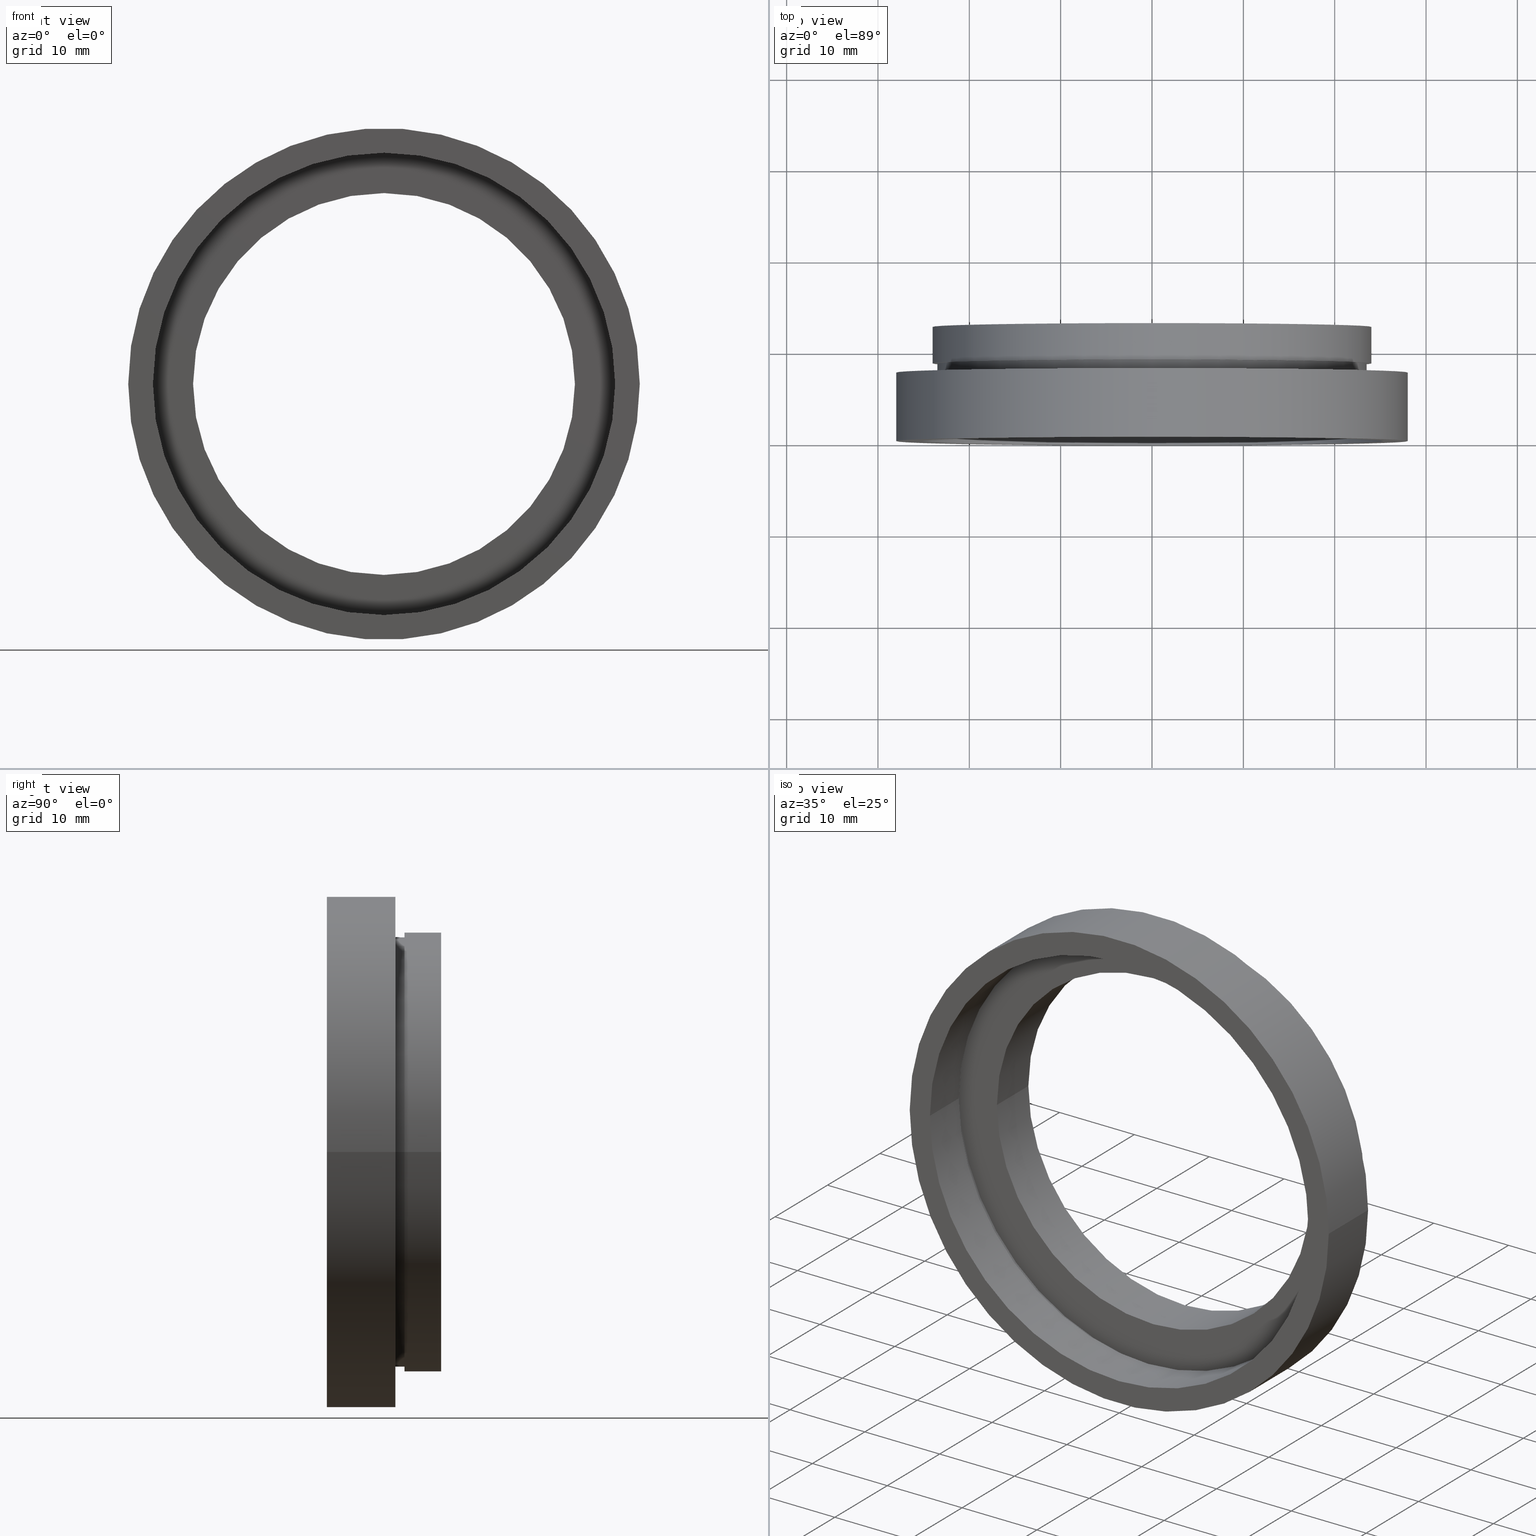
[diagram: canonical four-view strip — front | top / right | iso, engineering-drawing reading convention]
A machine part, canonical four-view strip (front | top / right | iso — engineering-drawing reading convention). The complete STEP part file that produces these views, byte-faithful:
ISO-10303-21;
HEADER;
FILE_DESCRIPTION (( 'STEP AP214' ),
    '1' );
FILE_NAME ('504097.STEP',
    '2019-10-08T02:33:07',
    ( '' ),
    ( '' ),
    'SwSTEP 2.0',
    'SolidWorks 2016',
    '' );
FILE_SCHEMA (( 'AUTOMOTIVE_DESIGN' ));
ENDSEC;

DATA;
#1 = DIRECTION ( 'NONE',  ( -1.000000000000000000, -1.245016848787182300E-016, 0.0000000000000000000 ) ) ;
#2 = DIRECTION ( 'NONE',  ( -1.224646799147351000E-016, 1.000000000000000000, -0.0000000000000000000 ) ) ;
#3 = PRESENTATION_LAYER_ASSIGNMENT (  '', '', ( #92 ) ) ;
#4 = ORIENTED_EDGE ( 'NONE', *, *, #604, .F. ) ;
#5 = LINE ( 'NONE', #88, #386 ) ;
#6 = CIRCLE ( 'NONE', #237, 28.00000000000000000 ) ;
#7 = DIRECTION ( 'NONE',  ( -1.224646799147351000E-016, 1.000000000000000000, -0.0000000000000000000 ) ) ;
#8 = CARTESIAN_POINT ( 'NONE',  ( -25.30000000000000400, 5.499999999999991100, 0.0000000000000000000 ) ) ;
#9 = CARTESIAN_POINT ( 'NONE',  ( 25.30000000000000400, 5.499999999999998200, 3.098356401842804300E-015 ) ) ;
#10 = ORIENTED_EDGE ( 'NONE', *, *, #119, .F. ) ;
#11 =( NAMED_UNIT ( * ) PLANE_ANGLE_UNIT ( ) SI_UNIT ( $, .RADIAN. ) );
#12 =( GEOMETRIC_REPRESENTATION_CONTEXT ( 3 ) GLOBAL_UNCERTAINTY_ASSIGNED_CONTEXT ( ( #320 ) ) GLOBAL_UNIT_ASSIGNED_CONTEXT ( ( #33, #133, #274 ) ) REPRESENTATION_CONTEXT ( 'NONE', 'WORKASPACE' ) );
#13 = PRESENTATION_STYLE_ASSIGNMENT (( #550 ) ) ;
#14 = CIRCLE ( 'NONE', #44, 25.94999999999999900 ) ;
#15 = DIRECTION ( 'NONE',  ( -1.224646799147351000E-016, 1.000000000000000000, -0.0000000000000000000 ) ) ;
#16 = EDGE_CURVE ( 'NONE', #84, #619, #5, .T. ) ;
#17 = FILL_AREA_STYLE ('',( #220 ) ) ;
#18 = MANIFOLD_SOLID_BREP ( '��ת1', #467 ) ;
#19 = EDGE_LOOP ( 'NONE', ( #529, #419, #123, #593 ) ) ;
#20 = CARTESIAN_POINT ( 'NONE',  ( -24.01000000000000200, 12.49999999999999300, 0.0000000000000000000 ) ) ;
#21 = AXIS2_PLACEMENT_3D ( 'NONE', #200, #533, #246 ) ;
#22 = LINE ( 'NONE', #421, #610 ) ;
#23 = APPLICATION_CONTEXT ( 'automotive_design' ) ;
#24 = DIRECTION ( 'NONE',  ( -1.000000000000000000, -1.371322905910519200E-016, 0.0000000000000000000 ) ) ;
#25 = EDGE_CURVE ( 'NONE', #135, #449, #537, .T. ) ;
#26 = CARTESIAN_POINT ( 'NONE',  ( 23.50000000000000000, 8.500000000000000000, 2.877919977996280300E-015 ) ) ;
#27 = DIRECTION ( 'NONE',  ( -1.224646799147351000E-016, 1.000000000000000000, -0.0000000000000000000 ) ) ;
#28 = ORIENTED_EDGE ( 'NONE', *, *, #148, .F. ) ;
#29 = EDGE_CURVE ( 'NONE', #169, #343, #591, .T. ) ;
#30 = DIRECTION ( 'NONE',  ( 1.000000000000000000, 1.224646799147351000E-016, 0.0000000000000000000 ) ) ;
#31 = DIRECTION ( 'NONE',  ( -1.000000000000000000, -1.660022465049576300E-016, 0.0000000000000000000 ) ) ;
#32 = STYLED_ITEM ( 'NONE', ( #568 ), #336 ) ;
#33 =( LENGTH_UNIT ( ) NAMED_UNIT ( * ) SI_UNIT ( .MILLI., .METRE. ) );
#34 = EDGE_LOOP ( 'NONE', ( #113, #28, #77, #49 ) ) ;
#35 = ORIENTED_EDGE ( 'NONE', *, *, #377, .F. ) ;
#36 = ORIENTED_EDGE ( 'NONE', *, *, #85, .T. ) ;
#37 = MECHANICAL_DESIGN_GEOMETRIC_PRESENTATION_REPRESENTATION (  '', ( #92 ), #484 ) ;
#38 = EDGE_CURVE ( 'NONE', #297, #193, #513, .T. ) ;
#39 = PRODUCT_RELATED_PRODUCT_CATEGORY ( 'part', '', ( #371 ) ) ;
#40 = EDGE_LOOP ( 'NONE', ( #497, #161, #446, #385 ) ) ;
#41 = ORIENTED_EDGE ( 'NONE', *, *, #432, .F. ) ;
#42 = DIRECTION ( 'NONE',  ( -1.224646799147351000E-016, 1.000000000000000000, -0.0000000000000000000 ) ) ;
#43 = FACE_BOUND ( 'NONE', #621, .T. ) ;
#44 = AXIS2_PLACEMENT_3D ( 'NONE', #592, #305, #413 ) ;
#45 = SURFACE_STYLE_USAGE ( .BOTH. , #525 ) ;
#46 = ADVANCED_FACE ( 'NONE', ( #620, #425 ), #616, .F. ) ;
#47 =( NAMED_UNIT ( * ) SI_UNIT ( $, .STERADIAN. ) SOLID_ANGLE_UNIT ( ) );
#48 = EDGE_CURVE ( 'NONE', #565, #531, #244, .T. ) ;
#49 = ORIENTED_EDGE ( 'NONE', *, *, #597, .T. ) ;
#50 = VECTOR ( 'NONE', #349, 1000.000000000000000 ) ;
#51 = VERTEX_POINT ( 'NONE', #406 ) ;
#52 = VECTOR ( 'NONE', #415, 1000.000000000000000 ) ;
#53 = DIRECTION ( 'NONE',  ( -1.000000000000000000, -1.245016848787182300E-016, 0.0000000000000000000 ) ) ;
#54 = AXIS2_PLACEMENT_3D ( 'NONE', #140, #231, #241 ) ;
#55 = DIRECTION ( 'NONE',  ( -1.224646799147351000E-016, 1.000000000000000000, -0.0000000000000000000 ) ) ;
#56 =( NAMED_UNIT ( * ) SI_UNIT ( $, .STERADIAN. ) SOLID_ANGLE_UNIT ( ) );
#57 = FILL_AREA_STYLE ('',( #258 ) ) ;
#58 = EDGE_CURVE ( 'NONE', #201, #398, #234, .T. ) ;
#59 = ORIENTED_EDGE ( 'NONE', *, *, #100, .F. ) ;
#60 = VECTOR ( 'NONE', #498, 1000.000000000000000 ) ;
#61 = DIRECTION ( 'NONE',  ( -1.000000000000000000, -1.445000812975266200E-016, 0.0000000000000000000 ) ) ;
#62 = CIRCLE ( 'NONE', #383, 24.01000000000000200 ) ;
#63 = DIRECTION ( 'NONE',  ( -1.000000000000000000, -1.371322905910519200E-016, 0.0000000000000000000 ) ) ;
#64 = AXIS2_PLACEMENT_3D ( 'NONE', #571, #486, #291 ) ;
#65 = DIRECTION ( 'NONE',  ( -1.000000000000000000, -1.476360405086644300E-016, 0.0000000000000000000 ) ) ;
#66 = CARTESIAN_POINT ( 'NONE',  ( 1.394385078907593400E-015, 5.499999999999994700, 0.0000000000000000000 ) ) ;
#67 = EDGE_LOOP ( 'NONE', ( #315, #128 ) ) ;
#68 = CYLINDRICAL_SURFACE ( 'NONE', #330, 27.99999999999999600 ) ;
#69 = AXIS2_PLACEMENT_3D ( 'NONE', #562, #195, #559 ) ;
#70 = ORIENTED_EDGE ( 'NONE', *, *, #178, .T. ) ;
#71 = VECTOR ( 'NONE', #177, 1000.000000000000000 ) ;
#72 = CARTESIAN_POINT ( 'NONE',  ( -25.29999999999999700, -6.567803353796412200E-015, 0.0000000000000000000 ) ) ;
#73 = AXIS2_PLACEMENT_3D ( 'NONE', #458, #314, #165 ) ;
#74 = CARTESIAN_POINT ( 'NONE',  ( -20.89999999999999900, 16.88601823708207300, 0.0000000000000000000 ) ) ;
#75 = DIRECTION ( 'NONE',  ( -1.000000000000000000, -1.336973777246094200E-016, 0.0000000000000000000 ) ) ;
#76 = FILL_AREA_STYLE ('',( #265 ) ) ;
#77 = ORIENTED_EDGE ( 'NONE', *, *, #438, .T. ) ;
#78 = EDGE_LOOP ( 'NONE', ( #190, #518, #479, #324 ) ) ;
#79 = PRESENTATION_STYLE_ASSIGNMENT (( #606 ) ) ;
#80 = DIRECTION ( 'NONE',  ( -1.000000000000000000, -1.445000812975266200E-016, 0.0000000000000000000 ) ) ;
#81 = DIRECTION ( 'NONE',  ( 1.224646799147351000E-016, -1.000000000000000000, 0.0000000000000000000 ) ) ;
#82 = FILL_AREA_STYLE_COLOUR ( '', #216 ) ;
#83 = ORIENTED_EDGE ( 'NONE', *, *, #85, .F. ) ;
#84 = VERTEX_POINT ( 'NONE', #159 ) ;
#85 = EDGE_CURVE ( 'NONE', #169, #351, #114, .T. ) ;
#86 = AXIS2_PLACEMENT_3D ( 'NONE', #603, #608, #31 ) ;
#87 = ORIENTED_EDGE ( 'NONE', *, *, #148, .T. ) ;
#88 = CARTESIAN_POINT ( 'NONE',  ( 27.99999999999999600, 16.88601823708208000, 3.429011037612588900E-015 ) ) ;
#89 = FACE_BOUND ( 'NONE', #445, .T. ) ;
#90 = DIRECTION ( 'NONE',  ( -1.224646799147351000E-016, 1.000000000000000000, -0.0000000000000000000 ) ) ;
#91 =( NAMED_UNIT ( * ) SI_UNIT ( $, .STERADIAN. ) SOLID_ANGLE_UNIT ( ) );
#92 = STYLED_ITEM ( 'NONE', ( #267 ), #144 ) ;
#93 = DIRECTION ( 'NONE',  ( -1.224646799147351000E-016, 1.000000000000000000, -0.0000000000000000000 ) ) ;
#94 = EDGE_LOOP ( 'NONE', ( #590, #397 ) ) ;
#95 = CYLINDRICAL_SURFACE ( 'NONE', #346, 20.89999999999999900 ) ;
#96 = ORIENTED_EDGE ( 'NONE', *, *, #326, .T. ) ;
#97 = FACE_OUTER_BOUND ( 'NONE', #67, .T. ) ;
#98 = PRESENTATION_LAYER_ASSIGNMENT (  '', '', ( #594 ) ) ;
#99 = PLANE ( 'NONE',  #396 ) ;
#100 = EDGE_CURVE ( 'NONE', #343, #199, #189, .T. ) ;
#101 = DIRECTION ( 'NONE',  ( -1.224646799147351000E-016, 1.000000000000000000, -0.0000000000000000000 ) ) ;
#102 = CARTESIAN_POINT ( 'NONE',  ( 23.50000000000000000, 16.88601823708208000, 2.877919977996280300E-015 ) ) ;
#103 = PRESENTATION_LAYER_ASSIGNMENT (  '', '', ( #428 ) ) ;
#104 = ORIENTED_EDGE ( 'NONE', *, *, #29, .T. ) ;
#105 = DIRECTION ( 'NONE',  ( 1.000000000000000000, 1.224646799147351000E-016, 0.0000000000000000000 ) ) ;
#106 = ORIENTED_EDGE ( 'NONE', *, *, #326, .F. ) ;
#107 = CARTESIAN_POINT ( 'NONE',  ( 1.394385078907593400E-015, 5.499999999999994700, 0.0000000000000000000 ) ) ;
#108 = CARTESIAN_POINT ( 'NONE',  ( 0.0000000000000000000, 0.0000000000000000000, 0.0000000000000000000 ) ) ;
#109 = CARTESIAN_POINT ( 'NONE',  ( -25.30000000000000400, 16.88601823708207300, 0.0000000000000000000 ) ) ;
#110 = DIRECTION ( 'NONE',  ( -1.000000000000000000, -1.336973777246094200E-016, 0.0000000000000000000 ) ) ;
#111 = DIRECTION ( 'NONE',  ( -1.224646799147351000E-016, 1.000000000000000000, -0.0000000000000000000 ) ) ;
#112 = AXIS2_PLACEMENT_3D ( 'NONE', #312, #500, #309 ) ;
#113 = ORIENTED_EDGE ( 'NONE', *, *, #303, .F. ) ;
#114 = LINE ( 'NONE', #102, #60 ) ;
#115 = DIRECTION ( 'NONE',  ( -1.224646799147351000E-016, 1.000000000000000000, -0.0000000000000000000 ) ) ;
#116 = EDGE_CURVE ( 'NONE', #297, #523, #152, .T. ) ;
#117 = UNCERTAINTY_MEASURE_WITH_UNIT (LENGTH_MEASURE( 1.000000000000000100E-005 ), #551, 'distance_accuracy_value', 'NONE');
#118 = DIRECTION ( 'NONE',  ( -1.224646799147351000E-016, 1.000000000000000000, -0.0000000000000000000 ) ) ;
#119 = EDGE_CURVE ( 'NONE', #351, #199, #558, .T. ) ;
#120 = CARTESIAN_POINT ( 'NONE',  ( 0.0000000000000000000, 16.88601823708207700, 0.0000000000000000000 ) ) ;
#121 = FACE_OUTER_BOUND ( 'NONE', #476, .T. ) ;
#122 = AXIS2_PLACEMENT_3D ( 'NONE', #66, #599, #24 ) ;
#123 = ORIENTED_EDGE ( 'NONE', *, *, #126, .T. ) ;
#124 = FACE_BOUND ( 'NONE', #536, .T. ) ;
#125 = CARTESIAN_POINT ( 'NONE',  ( 1.149455719078123100E-015, 7.499999999999996400, 0.0000000000000000000 ) ) ;
#126 = EDGE_CURVE ( 'NONE', #201, #153, #333, .T. ) ;
#127 = CARTESIAN_POINT ( 'NONE',  ( 1.026991039163387900E-015, 8.499999999999996400, 0.0000000000000000000 ) ) ;
#128 = ORIENTED_EDGE ( 'NONE', *, *, #581, .F. ) ;
#129 = SURFACE_STYLE_FILL_AREA ( #472 ) ;
#130 = ORIENTED_EDGE ( 'NONE', *, *, #215, .F. ) ;
#131 = SURFACE_STYLE_USAGE ( .BOTH. , #184 ) ;
#132 = SURFACE_STYLE_FILL_AREA ( #17 ) ;
#133 =( NAMED_UNIT ( * ) PLANE_ANGLE_UNIT ( ) SI_UNIT ( $, .RADIAN. ) );
#134 = AXIS2_PLACEMENT_3D ( 'NONE', #337, #42, #1 ) ;
#135 = VERTEX_POINT ( 'NONE', #494 ) ;
#136 = FACE_OUTER_BOUND ( 'NONE', #188, .T. ) ;
#137 = ORIENTED_EDGE ( 'NONE', *, *, #457, .T. ) ;
#138 = SHAPE_DEFINITION_REPRESENTATION ( #364, #284 ) ;
#139 = FACE_OUTER_BOUND ( 'NONE', #362, .T. ) ;
#140 = CARTESIAN_POINT ( 'NONE',  ( 1.149455719078123100E-015, 7.499999999999996400, 0.0000000000000000000 ) ) ;
#141 = ORIENTED_EDGE ( 'NONE', *, *, #119, .T. ) ;
#142 = DIRECTION ( 'NONE',  ( -1.000000000000000000, -1.476360405086644300E-016, 0.0000000000000000000 ) ) ;
#143 = CARTESIAN_POINT ( 'NONE',  ( 5.371323195044473300E-016, 12.49999999999999600, 0.0000000000000000000 ) ) ;
#144 = ADVANCED_FACE ( 'NONE', ( #121 ), #95, .F. ) ;
#145 = CIRCLE ( 'NONE', #156, 24.01000000000000200 ) ;
#146 = STYLED_ITEM ( 'NONE', ( #335 ), #624 ) ;
#147 = DIRECTION ( 'NONE',  ( -1.000000000000000000, -1.445000812975266200E-016, 0.0000000000000000000 ) ) ;
#148 = EDGE_CURVE ( 'NONE', #51, #372, #288, .T. ) ;
#149 = DIRECTION ( 'NONE',  ( -1.000000000000000000, -1.224646799147351000E-016, 0.0000000000000000000 ) ) ;
#150 = ADVANCED_FACE ( 'NONE', ( #162 ), #474, .F. ) ;
#151 = ORIENTED_EDGE ( 'NONE', *, *, #173, .T. ) ;
#152 = CIRCLE ( 'NONE', #416, 24.01000000000000200 ) ;
#153 = VERTEX_POINT ( 'NONE', #8 ) ;
#154 = SURFACE_STYLE_USAGE ( .BOTH. , #586 ) ;
#155 = CYLINDRICAL_SURFACE ( 'NONE', #510, 25.30000000000000400 ) ;
#156 = AXIS2_PLACEMENT_3D ( 'NONE', #157, #538, #453 ) ;
#157 = CARTESIAN_POINT ( 'NONE',  ( 5.371323195044475300E-016, 12.49999999999999600, 0.0000000000000000000 ) ) ;
#158 = CARTESIAN_POINT ( 'NONE',  ( 2.067940818438636500E-015, -3.469446951953614200E-015, 0.0000000000000000000 ) ) ;
#159 = CARTESIAN_POINT ( 'NONE',  ( 28.00000000000000400, -4.043591434103126100E-017, 3.429011037612589700E-015 ) ) ;
#160 = CARTESIAN_POINT ( 'NONE',  ( 24.01000000000000200, 12.50000000000000000, 2.940376964752795100E-015 ) ) ;
#161 = ORIENTED_EDGE ( 'NONE', *, *, #303, .T. ) ;
#162 = FACE_OUTER_BOUND ( 'NONE', #40, .T. ) ;
#163 = FACE_OUTER_BOUND ( 'NONE', #78, .T. ) ;
#164 = DIRECTION ( 'NONE',  ( -1.224646799147351000E-016, 1.000000000000000000, -0.0000000000000000000 ) ) ;
#165 = DIRECTION ( 'NONE',  ( -1.000000000000000000, -1.239088197126290800E-016, 0.0000000000000000000 ) ) ;
#166 = APPLICATION_PROTOCOL_DEFINITION ( 'draft international standard', 'automotive_design', 1998, #322 ) ;
#167 = UNCERTAINTY_MEASURE_WITH_UNIT (LENGTH_MEASURE( 1.000000000000000100E-005 ), #174, 'distance_accuracy_value', 'NONE');
#168 = DIRECTION ( 'NONE',  ( -1.000000000000000000, -1.239088197126290800E-016, 0.0000000000000000000 ) ) ;
#169 = VERTEX_POINT ( 'NONE', #454 ) ;
#170 = EDGE_LOOP ( 'NONE', ( #341, #137 ) ) ;
#171 = CARTESIAN_POINT ( 'NONE',  ( 5.371323195044473300E-016, 12.49999999999999600, 0.0000000000000000000 ) ) ;
#172 = FACE_OUTER_BOUND ( 'NONE', #424, .T. ) ;
#173 = EDGE_CURVE ( 'NONE', #473, #84, #282, .T. ) ;
#174 =( LENGTH_UNIT ( ) NAMED_UNIT ( * ) SI_UNIT ( .MILLI., .METRE. ) );
#175 = PRESENTATION_LAYER_ASSIGNMENT (  '', '', ( #368 ) ) ;
#176 = CARTESIAN_POINT ( 'NONE',  ( 20.89999999999999900, 16.88601823708208000, 2.559511810217968300E-015 ) ) ;
#177 = DIRECTION ( 'NONE',  ( -1.224646799147351000E-016, 1.000000000000000000, -0.0000000000000000000 ) ) ;
#178 = EDGE_CURVE ( 'NONE', #619, #607, #530, .T. ) ;
#179 = SURFACE_STYLE_USAGE ( .BOTH. , #437 ) ;
#180 = PRODUCT_DEFINITION ( 'δ֪', '', #420, #524 ) ;
#181 = SURFACE_STYLE_FILL_AREA ( #248 ) ;
#182 =( NAMED_UNIT ( * ) SI_UNIT ( $, .STERADIAN. ) SOLID_ANGLE_UNIT ( ) );
#183 = COLOUR_RGB ( '',1.000000000000000000, 1.000000000000000000, 1.000000000000000000 ) ;
#184 = SURFACE_SIDE_STYLE ('',( #129 ) ) ;
#185 = STYLED_ITEM ( 'NONE', ( #13 ), #284 ) ;
#186 = CARTESIAN_POINT ( 'NONE',  ( 20.89999999999999900, 12.50000000000000000, 0.0000000000000000000 ) ) ;
#187 = MECHANICAL_DESIGN_GEOMETRIC_PRESENTATION_REPRESENTATION (  '', ( #368 ), #618 ) ;
#188 = EDGE_LOOP ( 'NONE', ( #243, #477, #266, #275 ) ) ;
#189 = LINE ( 'NONE', #205, #50 ) ;
#190 = ORIENTED_EDGE ( 'NONE', *, *, #465, .F. ) ;
#191 = SURFACE_STYLE_FILL_AREA ( #76 ) ;
#192 = ADVANCED_FACE ( 'NONE', ( #136 ), #68, .T. ) ;
#193 = VERTEX_POINT ( 'NONE', #20 ) ;
#194 = AXIS2_PLACEMENT_3D ( 'NONE', #543, #405, #63 ) ;
#195 = DIRECTION ( 'NONE',  ( -1.224646799147351000E-016, 1.000000000000000000, -0.0000000000000000000 ) ) ;
#196 = CIRCLE ( 'NONE', #54, 23.50000000000000000 ) ;
#197 = ADVANCED_FACE ( 'NONE', ( #566 ), #355, .F. ) ;
#198 = FILL_AREA_STYLE_COLOUR ( '', #439 ) ;
#199 = VERTEX_POINT ( 'NONE', #422 ) ;
#200 = CARTESIAN_POINT ( 'NONE',  ( 2.067940818438636500E-015, -3.469446951953614200E-015, 0.0000000000000000000 ) ) ;
#201 = VERTEX_POINT ( 'NONE', #72 ) ;
#202 = CARTESIAN_POINT ( 'NONE',  ( -20.89999999999999900, 6.499999999999994700, 0.0000000000000000000 ) ) ;
#203 = AXIS2_PLACEMENT_3D ( 'NONE', #107, #490, #110 ) ;
#204 = FILL_AREA_STYLE ('',( #448 ) ) ;
#205 = CARTESIAN_POINT ( 'NONE',  ( -23.50000000000000000, 16.88601823708207300, 0.0000000000000000000 ) ) ;
#206 = CARTESIAN_POINT ( 'NONE',  ( 0.0000000000000000000, 16.88601823708207700, 0.0000000000000000000 ) ) ;
#207 = CYLINDRICAL_SURFACE ( 'NONE', #69, 23.50000000000000000 ) ;
#208 = LINE ( 'NONE', #507, #71 ) ;
#209 = CARTESIAN_POINT ( 'NONE',  ( 0.0000000000000000000, 16.88601823708207700, 0.0000000000000000000 ) ) ;
#210 = CARTESIAN_POINT ( 'NONE',  ( 23.50000000000000000, 7.500000000000000000, 0.0000000000000000000 ) ) ;
#211 = CARTESIAN_POINT ( 'NONE',  ( 1.026991039163387900E-015, 8.499999999999996400, 0.0000000000000000000 ) ) ;
#212 = PRESENTATION_LAYER_ASSIGNMENT (  '', '', ( #245 ) ) ;
#213 = ORIENTED_EDGE ( 'NONE', *, *, #316, .T. ) ;
#214 = CARTESIAN_POINT ( 'NONE',  ( 25.94999999999999900, 6.499999999999999100, 3.177958443787381900E-015 ) ) ;
#215 = EDGE_CURVE ( 'NONE', #607, #619, #6, .T. ) ;
#216 = COLOUR_RGB ( '',1.000000000000000000, 1.000000000000000000, 1.000000000000000000 ) ;
#217 = AXIS2_PLACEMENT_3D ( 'NONE', #143, #2, #382 ) ;
#218 = DIRECTION ( 'NONE',  ( -1.224646799147351000E-016, 1.000000000000000000, -0.0000000000000000000 ) ) ;
#219 =( NAMED_UNIT ( * ) SI_UNIT ( $, .STERADIAN. ) SOLID_ANGLE_UNIT ( ) );
#220 = FILL_AREA_STYLE_COLOUR ( '', #319 ) ;
#221 = DIRECTION ( 'NONE',  ( -1.224646799147351000E-016, 1.000000000000000000, -0.0000000000000000000 ) ) ;
#222 = PRESENTATION_LAYER_ASSIGNMENT (  '', '', ( #32 ) ) ;
#223 = ORIENTED_EDGE ( 'NONE', *, *, #29, .F. ) ;
#224 = SURFACE_SIDE_STYLE ('',( #191 ) ) ;
#225 = VERTEX_POINT ( 'NONE', #214 ) ;
#226 = ORIENTED_EDGE ( 'NONE', *, *, #58, .T. ) ;
#227 = CYLINDRICAL_SURFACE ( 'NONE', #194, 25.30000000000000400 ) ;
#228 = FACE_OUTER_BOUND ( 'NONE', #19, .T. ) ;
#229 =( NAMED_UNIT ( * ) PLANE_ANGLE_UNIT ( ) SI_UNIT ( $, .RADIAN. ) );
#230 = AXIS2_PLACEMENT_3D ( 'NONE', #232, #561, #276 ) ;
#231 = DIRECTION ( 'NONE',  ( -1.224646799147351000E-016, 1.000000000000000000, -0.0000000000000000000 ) ) ;
#232 = CARTESIAN_POINT ( 'NONE',  ( 1.026991039163387900E-015, 8.499999999999996400, 0.0000000000000000000 ) ) ;
#233 = EDGE_CURVE ( 'NONE', #531, #449, #390, .T. ) ;
#234 = CIRCLE ( 'NONE', #433, 25.30000000000000100 ) ;
#235 = ORIENTED_EDGE ( 'NONE', *, *, #377, .T. ) ;
#236 = FACE_OUTER_BOUND ( 'NONE', #170, .T. ) ;
#237 = AXIS2_PLACEMENT_3D ( 'NONE', #125, #118, #418 ) ;
#238 = ORIENTED_EDGE ( 'NONE', *, *, #116, .T. ) ;
#239 = ORIENTED_EDGE ( 'NONE', *, *, #173, .F. ) ;
#240 = COLOUR_RGB ( '',1.000000000000000000, 1.000000000000000000, 1.000000000000000000 ) ;
#241 = DIRECTION ( 'NONE',  ( -1.000000000000000000, -1.107270303814983300E-016, 0.0000000000000000000 ) ) ;
#242 = CARTESIAN_POINT ( 'NONE',  ( 25.30000000000000400, 5.499999999999999100, 0.0000000000000000000 ) ) ;
#243 = ORIENTED_EDGE ( 'NONE', *, *, #16, .F. ) ;
#244 = CIRCLE ( 'NONE', #403, 20.89999999999999900 ) ;
#245 = STYLED_ITEM ( 'NONE', ( #614 ), #480 ) ;
#246 = DIRECTION ( 'NONE',  ( -1.000000000000000000, -1.224646799147351200E-016, 0.0000000000000000000 ) ) ;
#247 = CIRCLE ( 'NONE', #134, 20.89999999999999900 ) ;
#248 = FILL_AREA_STYLE ('',( #198 ) ) ;
#249 = AXIS2_PLACEMENT_3D ( 'NONE', #242, #338, #573 ) ;
#250 = CARTESIAN_POINT ( 'NONE',  ( 20.89999999999999900, 6.499999999999999100, 0.0000000000000000000 ) ) ;
#251 = ADVANCED_FACE ( 'NONE', ( #278 ), #255, .T. ) ;
#252 = MECHANICAL_DESIGN_GEOMETRIC_PRESENTATION_REPRESENTATION (  '', ( #245 ), #298 ) ;
#253 = CIRCLE ( 'NONE', #426, 24.01000000000000200 ) ;
#254 =( LENGTH_UNIT ( ) NAMED_UNIT ( * ) SI_UNIT ( .MILLI., .METRE. ) );
#255 = CYLINDRICAL_SURFACE ( 'NONE', #466, 27.99999999999999600 ) ;
#256 = CARTESIAN_POINT ( 'NONE',  ( -27.99999999999999600, 16.88601823708207300, 0.0000000000000000000 ) ) ;
#257 = DIRECTION ( 'NONE',  ( -1.224646799147351000E-016, 1.000000000000000000, 0.0000000000000000000 ) ) ;
#258 = FILL_AREA_STYLE_COLOUR ( '', #260 ) ;
#259 = ORIENTED_EDGE ( 'NONE', *, *, #345, .F. ) ;
#260 = COLOUR_RGB ( '',1.000000000000000000, 1.000000000000000000, 1.000000000000000000 ) ;
#261 = EDGE_LOOP ( 'NONE', ( #151, #380, #130, #4 ) ) ;
#262 = EDGE_CURVE ( 'NONE', #449, #135, #402, .T. ) ;
#263 = FACE_OUTER_BOUND ( 'NONE', #325, .T. ) ;
#264 = CARTESIAN_POINT ( 'NONE',  ( 2.067940818438636500E-015, -3.469446951953614200E-015, 0.0000000000000000000 ) ) ;
#265 = FILL_AREA_STYLE_COLOUR ( '', #290 ) ;
#266 = ORIENTED_EDGE ( 'NONE', *, *, #604, .T. ) ;
#267 = PRESENTATION_STYLE_ASSIGNMENT (( #154 ) ) ;
#268 = EDGE_LOOP ( 'NONE', ( #576, #96, #556, #583 ) ) ;
#269 = EDGE_LOOP ( 'NONE', ( #83, #104, #557, #10 ) ) ;
#270 = PRODUCT_CONTEXT ( 'NONE', #23, 'mechanical' ) ;
#271 = CIRCLE ( 'NONE', #572, 25.94999999999999900 ) ;
#272 = CARTESIAN_POINT ( 'NONE',  ( 0.0000000000000000000, 16.88601823708207700, 0.0000000000000000000 ) ) ;
#273 = DIRECTION ( 'NONE',  ( -1.000000000000000000, -1.224646799147351200E-016, 0.0000000000000000000 ) ) ;
#274 =( NAMED_UNIT ( * ) SI_UNIT ( $, .STERADIAN. ) SOLID_ANGLE_UNIT ( ) );
#275 = ORIENTED_EDGE ( 'NONE', *, *, #178, .F. ) ;
#276 = DIRECTION ( 'NONE',  ( -1.000000000000000000, -1.476360405086644300E-016, 0.0000000000000000000 ) ) ;
#277 = LINE ( 'NONE', #256, #388 ) ;
#278 = FACE_OUTER_BOUND ( 'NONE', #261, .T. ) ;
#279 = MECHANICAL_DESIGN_GEOMETRIC_PRESENTATION_REPRESENTATION (  '', ( #146 ), #321 ) ;
#280 = CARTESIAN_POINT ( 'NONE',  ( 0.0000000000000000000, 16.88601823708207700, 0.0000000000000000000 ) ) ;
#281 = UNCERTAINTY_MEASURE_WITH_UNIT (LENGTH_MEASURE( 1.000000000000000100E-005 ), #622, 'distance_accuracy_value', 'NONE');
#282 = CIRCLE ( 'NONE', #378, 27.99999999999999600 ) ;
#283 = AXIS2_PLACEMENT_3D ( 'NONE', #585, #257, #582 ) ;
#284 = ADVANCED_BREP_SHAPE_REPRESENTATION ( '504097', ( #18, #471 ), #313 ) ;
#285 = EDGE_CURVE ( 'NONE', #565, #135, #595, .T. ) ;
#286 = AXIS2_PLACEMENT_3D ( 'NONE', #334, #475, #511 ) ;
#287 = EDGE_LOOP ( 'NONE', ( #238, #461, #332, #512 ) ) ;
#288 = CIRCLE ( 'NONE', #203, 25.94999999999999900 ) ;
#289 = SURFACE_SIDE_STYLE ('',( #412 ) ) ;
#290 = COLOUR_RGB ( '',1.000000000000000000, 1.000000000000000000, 1.000000000000000000 ) ;
#291 = DIRECTION ( 'NONE',  ( -1.000000000000000000, -1.107270303814983300E-016, 0.0000000000000000000 ) ) ;
#292 = CIRCLE ( 'NONE', #328, 25.30000000000000400 ) ;
#293 = AXIS2_PLACEMENT_3D ( 'NONE', #206, #164, #404 ) ;
#294 = CARTESIAN_POINT ( 'NONE',  ( -24.01000000000000200, 16.88601823708207300, 0.0000000000000000000 ) ) ;
#295 = ADVANCED_FACE ( 'NONE', ( #139 ), #155, .F. ) ;
#296 = DIRECTION ( 'NONE',  ( -1.224646799147351000E-016, 1.000000000000000000, 0.0000000000000000000 ) ) ;
#297 = VERTEX_POINT ( 'NONE', #508 ) ;
#298 =( GEOMETRIC_REPRESENTATION_CONTEXT ( 3 ) GLOBAL_UNCERTAINTY_ASSIGNED_CONTEXT ( ( #281 ) ) GLOBAL_UNIT_ASSIGNED_CONTEXT ( ( #622, #342, #47 ) ) REPRESENTATION_CONTEXT ( 'NONE', 'WORKASPACE' ) );
#299 = ORIENTED_EDGE ( 'NONE', *, *, #430, .T. ) ;
#300 = ORIENTED_EDGE ( 'NONE', *, *, #569, .T. ) ;
#301 = EDGE_CURVE ( 'NONE', #153, #613, #521, .T. ) ;
#302 = CARTESIAN_POINT ( 'NONE',  ( 2.067940818438636500E-015, -3.469446951953614200E-015, 0.0000000000000000000 ) ) ;
#303 = EDGE_CURVE ( 'NONE', #372, #225, #208, .T. ) ;
#304 =( NAMED_UNIT ( * ) PLANE_ANGLE_UNIT ( ) SI_UNIT ( $, .RADIAN. ) );
#305 = DIRECTION ( 'NONE',  ( -1.224646799147351000E-016, 1.000000000000000000, -0.0000000000000000000 ) ) ;
#306 = ORIENTED_EDGE ( 'NONE', *, *, #215, .T. ) ;
#307 = SURFACE_STYLE_FILL_AREA ( #57 ) ;
#308 = FACE_OUTER_BOUND ( 'NONE', #268, .T. ) ;
#309 = DIRECTION ( 'NONE',  ( -1.000000000000000000, -1.336973777246094200E-016, 0.0000000000000000000 ) ) ;
#310 = FACE_OUTER_BOUND ( 'NONE', #287, .T. ) ;
#311 = UNCERTAINTY_MEASURE_WITH_UNIT (LENGTH_MEASURE( 1.000000000000000100E-005 ), #254, 'distance_accuracy_value', 'NONE');
#312 = CARTESIAN_POINT ( 'NONE',  ( 1.271920398992858200E-015, 6.499999999999995600, 0.0000000000000000000 ) ) ;
#313 =( GEOMETRIC_REPRESENTATION_CONTEXT ( 3 ) GLOBAL_UNCERTAINTY_ASSIGNED_CONTEXT ( ( #615 ) ) GLOBAL_UNIT_ASSIGNED_CONTEXT ( ( #589, #229, #370 ) ) REPRESENTATION_CONTEXT ( 'NONE', 'WORKASPACE' ) );
#314 = DIRECTION ( 'NONE',  ( -1.224646799147351000E-016, 1.000000000000000000, -0.0000000000000000000 ) ) ;
#315 = ORIENTED_EDGE ( 'NONE', *, *, #597, .F. ) ;
#316 = EDGE_CURVE ( 'NONE', #398, #613, #22, .T. ) ;
#317 = PRESENTATION_STYLE_ASSIGNMENT (( #131 ) ) ;
#318 = DIRECTION ( 'NONE',  ( -1.000000000000000000, -1.371322905910519200E-016, 0.0000000000000000000 ) ) ;
#319 = COLOUR_RGB ( '',1.000000000000000000, 1.000000000000000000, 1.000000000000000000 ) ;
#320 = UNCERTAINTY_MEASURE_WITH_UNIT (LENGTH_MEASURE( 1.000000000000000100E-005 ), #33, 'distance_accuracy_value', 'NONE');
#321 =( GEOMETRIC_REPRESENTATION_CONTEXT ( 3 ) GLOBAL_UNCERTAINTY_ASSIGNED_CONTEXT ( ( #311 ) ) GLOBAL_UNIT_ASSIGNED_CONTEXT ( ( #254, #304, #56 ) ) REPRESENTATION_CONTEXT ( 'NONE', 'WORKASPACE' ) );
#322 = APPLICATION_CONTEXT ( 'automotive_design' ) ;
#323 = DIRECTION ( 'NONE',  ( -1.224646799147351000E-016, 1.000000000000000000, -0.0000000000000000000 ) ) ;
#324 = ORIENTED_EDGE ( 'NONE', *, *, #285, .F. ) ;
#325 = EDGE_LOOP ( 'NONE', ( #306, #70 ) ) ;
#326 = EDGE_CURVE ( 'NONE', #523, #297, #62, .T. ) ;
#327 = LINE ( 'NONE', #517, #427 ) ;
#328 = AXIS2_PLACEMENT_3D ( 'NONE', #442, #101, #391 ) ;
#329 = CARTESIAN_POINT ( 'NONE',  ( -23.50000000000000000, 7.499999999999993800, 0.0000000000000000000 ) ) ;
#330 = AXIS2_PLACEMENT_3D ( 'NONE', #209, #542, #546 ) ;
#331 = FILL_AREA_STYLE ('',( #482 ) ) ;
#332 = ORIENTED_EDGE ( 'NONE', *, *, #502, .F. ) ;
#333 = LINE ( 'NONE', #109, #408 ) ;
#334 = CARTESIAN_POINT ( 'NONE',  ( 0.0000000000000000000, 16.88601823708207700, 0.0000000000000000000 ) ) ;
#335 = PRESENTATION_STYLE_ASSIGNMENT (( #456 ) ) ;
#336 = ADVANCED_FACE ( 'NONE', ( #310 ), #376, .T. ) ;
#337 = CARTESIAN_POINT ( 'NONE',  ( 1.271920398992858000E-015, 6.499999999999997300, 0.0000000000000000000 ) ) ;
#338 = DIRECTION ( 'NONE',  ( 1.224646799147351000E-016, -1.000000000000000000, 0.0000000000000000000 ) ) ;
#339 = DIRECTION ( 'NONE',  ( -1.000000000000000000, -1.224646799147351000E-016, 0.0000000000000000000 ) ) ;
#340 = PRESENTATION_LAYER_ASSIGNMENT (  '', '', ( #185 ) ) ;
#341 = ORIENTED_EDGE ( 'NONE', *, *, #502, .T. ) ;
#342 =( NAMED_UNIT ( * ) PLANE_ANGLE_UNIT ( ) SI_UNIT ( $, .RADIAN. ) );
#343 = VERTEX_POINT ( 'NONE', #329 ) ;
#344 = CIRCLE ( 'NONE', #605, 25.30000000000000100 ) ;
#345 = EDGE_CURVE ( 'NONE', #199, #351, #440, .T. ) ;
#346 = AXIS2_PLACEMENT_3D ( 'NONE', #359, #111, #455 ) ;
#347 = ADVANCED_FACE ( 'NONE', ( #43, #236 ), #429, .F. ) ;
#348 = CARTESIAN_POINT ( 'NONE',  ( 20.89999999999999900, 12.49999999999999800, 2.559511810217968300E-015 ) ) ;
#349 = DIRECTION ( 'NONE',  ( -1.224646799147351000E-016, 1.000000000000000000, -0.0000000000000000000 ) ) ;
#350 = ORIENTED_EDGE ( 'NONE', *, *, #233, .F. ) ;
#351 = VERTEX_POINT ( 'NONE', #26 ) ;
#352 = EDGE_LOOP ( 'NONE', ( #239, #41 ) ) ;
#353 = CARTESIAN_POINT ( 'NONE',  ( -28.00000000000000000, 7.499999999999992900, 0.0000000000000000000 ) ) ;
#354 = CARTESIAN_POINT ( 'NONE',  ( 1.271920398992858000E-015, 6.499999999999997300, 0.0000000000000000000 ) ) ;
#355 = CYLINDRICAL_SURFACE ( 'NONE', #361, 25.94999999999999900 ) ;
#356 = CARTESIAN_POINT ( 'NONE',  ( -25.94999999999999900, 6.499999999999992000, 0.0000000000000000000 ) ) ;
#357 = AXIS2_PLACEMENT_3D ( 'NONE', #280, #488, #142 ) ;
#358 = PLANE ( 'NONE',  #489 ) ;
#359 = CARTESIAN_POINT ( 'NONE',  ( 0.0000000000000000000, 16.88601823708207700, 0.0000000000000000000 ) ) ;
#360 = DIRECTION ( 'NONE',  ( -1.000000000000000000, -1.336973777246094200E-016, 0.0000000000000000000 ) ) ;
#361 = AXIS2_PLACEMENT_3D ( 'NONE', #272, #555, #75 ) ;
#362 = EDGE_LOOP ( 'NONE', ( #506, #213, #299, #407 ) ) ;
#363 = VECTOR ( 'NONE', #392, 1000.000000000000000 ) ;
#364 = PRODUCT_DEFINITION_SHAPE ( 'NONE', 'NONE',  #180 ) ;
#365 = AXIS2_PLACEMENT_3D ( 'NONE', #444, #93, #147 ) ;
#366 = SURFACE_SIDE_STYLE ('',( #132 ) ) ;
#367 = EDGE_LOOP ( 'NONE', ( #545, #106 ) ) ;
#368 = STYLED_ITEM ( 'NONE', ( #317 ), #18 ) ;
#369 = CIRCLE ( 'NONE', #112, 25.94999999999999900 ) ;
#370 =( NAMED_UNIT ( * ) SI_UNIT ( $, .STERADIAN. ) SOLID_ANGLE_UNIT ( ) );
#371 = PRODUCT ( '504097', '504097', '', ( #270 ) ) ;
#372 = VERTEX_POINT ( 'NONE', #469 ) ;
#373 = LINE ( 'NONE', #574, #560 ) ;
#374 = MECHANICAL_DESIGN_GEOMETRIC_PRESENTATION_REPRESENTATION (  '', ( #185 ), #414 ) ;
#375 =( LENGTH_UNIT ( ) NAMED_UNIT ( * ) SI_UNIT ( .MILLI., .METRE. ) );
#376 = CYLINDRICAL_SURFACE ( 'NONE', #286, 24.01000000000000200 ) ;
#377 = EDGE_CURVE ( 'NONE', #343, #169, #196, .T. ) ;
#378 = AXIS2_PLACEMENT_3D ( 'NONE', #264, #115, #273 ) ;
#379 = EDGE_LOOP ( 'NONE', ( #87, #547 ) ) ;
#380 = ORIENTED_EDGE ( 'NONE', *, *, #16, .T. ) ;
#381 = ADVANCED_FACE ( 'NONE', ( #172 ), #207, .T. ) ;
#382 = DIRECTION ( 'NONE',  ( -1.000000000000000000, -8.300112325247881300E-017, 0.0000000000000000000 ) ) ;
#383 = AXIS2_PLACEMENT_3D ( 'NONE', #127, #423, #80 ) ;
#384 = CARTESIAN_POINT ( 'NONE',  ( 28.00000000000000000, -9.629649721936179300E-032, 0.0000000000000000000 ) ) ;
#385 = ORIENTED_EDGE ( 'NONE', *, *, #438, .F. ) ;
#386 = VECTOR ( 'NONE', #434, 1000.000000000000000 ) ;
#387 = DIRECTION ( 'NONE',  ( -1.000000000000000000, -1.445000812975266200E-016, 0.0000000000000000000 ) ) ;
#388 = VECTOR ( 'NONE', #587, 1000.000000000000000 ) ;
#389 = AXIS2_PLACEMENT_3D ( 'NONE', #588, #55, #65 ) ;
#390 = LINE ( 'NONE', #176, #578 ) ;
#391 = DIRECTION ( 'NONE',  ( -1.000000000000000000, -1.371322905910519200E-016, 0.0000000000000000000 ) ) ;
#392 = DIRECTION ( 'NONE',  ( -1.224646799147351000E-016, 1.000000000000000000, -0.0000000000000000000 ) ) ;
#393 = UNCERTAINTY_MEASURE_WITH_UNIT (LENGTH_MEASURE( 1.000000000000000100E-005 ), #375, 'distance_accuracy_value', 'NONE');
#394 = PLANE ( 'NONE',  #540 ) ;
#395 = ADVANCED_FACE ( 'NONE', ( #163 ), #452, .F. ) ;
#396 = AXIS2_PLACEMENT_3D ( 'NONE', #384, #485, #149 ) ;
#397 = ORIENTED_EDGE ( 'NONE', *, *, #430, .F. ) ;
#398 = VERTEX_POINT ( 'NONE', #564 ) ;
#399 = FACE_OUTER_BOUND ( 'NONE', #352, .T. ) ;
#400 = EDGE_CURVE ( 'NONE', #523, #567, #327, .T. ) ;
#401 = DIRECTION ( 'NONE',  ( 1.224646799147351000E-016, -1.000000000000000000, 0.0000000000000000000 ) ) ;
#402 = CIRCLE ( 'NONE', #492, 20.89999999999999900 ) ;
#403 = AXIS2_PLACEMENT_3D ( 'NONE', #354, #15, #53 ) ;
#404 = DIRECTION ( 'NONE',  ( -1.000000000000000000, -1.336973777246094200E-016, 0.0000000000000000000 ) ) ;
#405 = DIRECTION ( 'NONE',  ( -1.224646799147351000E-016, 1.000000000000000000, -0.0000000000000000000 ) ) ;
#406 = CARTESIAN_POINT ( 'NONE',  ( -25.94999999999999900, 5.499999999999991100, 0.0000000000000000000 ) ) ;
#407 = ORIENTED_EDGE ( 'NONE', *, *, #126, .F. ) ;
#408 = VECTOR ( 'NONE', #447, 1000.000000000000000 ) ;
#409 = CARTESIAN_POINT ( 'NONE',  ( 28.00000000000000400, 7.500000000000000000, 3.429011037612589700E-015 ) ) ;
#410 =( NAMED_UNIT ( * ) SI_UNIT ( $, .STERADIAN. ) SOLID_ANGLE_UNIT ( ) );
#411 = FACE_BOUND ( 'NONE', #417, .T. ) ;
#412 = SURFACE_STYLE_FILL_AREA ( #331 ) ;
#413 = DIRECTION ( 'NONE',  ( -1.000000000000000000, -1.336973777246094200E-016, 0.0000000000000000000 ) ) ;
#414 =( GEOMETRIC_REPRESENTATION_CONTEXT ( 3 ) GLOBAL_UNCERTAINTY_ASSIGNED_CONTEXT ( ( #167 ) ) GLOBAL_UNIT_ASSIGNED_CONTEXT ( ( #174, #598, #219 ) ) REPRESENTATION_CONTEXT ( 'NONE', 'WORKASPACE' ) );
#415 = DIRECTION ( 'NONE',  ( -1.224646799147351000E-016, 1.000000000000000000, -0.0000000000000000000 ) ) ;
#416 = AXIS2_PLACEMENT_3D ( 'NONE', #211, #451, #61 ) ;
#417 = EDGE_LOOP ( 'NONE', ( #226, #300 ) ) ;
#418 = DIRECTION ( 'NONE',  ( -1.000000000000000000, -1.239088197126290800E-016, 0.0000000000000000000 ) ) ;
#419 = ORIENTED_EDGE ( 'NONE', *, *, #58, .F. ) ;
#420 = PRODUCT_DEFINITION_FORMATION_WITH_SPECIFIED_SOURCE ( '�κ�', '', #371, .NOT_KNOWN. ) ;
#421 = CARTESIAN_POINT ( 'NONE',  ( 25.30000000000000400, 16.88601823708208000, 3.098356401842804300E-015 ) ) ;
#422 = CARTESIAN_POINT ( 'NONE',  ( -23.50000000000000000, 8.499999999999992900, 0.0000000000000000000 ) ) ;
#423 = DIRECTION ( 'NONE',  ( -1.224646799147351000E-016, 1.000000000000000000, -0.0000000000000000000 ) ) ;
#424 = EDGE_LOOP ( 'NONE', ( #235, #36, #259, #59 ) ) ;
#425 = FACE_OUTER_BOUND ( 'NONE', #379, .T. ) ;
#426 = AXIS2_PLACEMENT_3D ( 'NONE', #443, #90, #387 ) ;
#427 = VECTOR ( 'NONE', #27, 1000.000000000000000 ) ;
#428 = STYLED_ITEM ( 'NONE', ( #623 ), #295 ) ;
#429 = PLANE ( 'NONE',  #464 ) ;
#430 = EDGE_CURVE ( 'NONE', #613, #153, #292, .T. ) ;
#431 = UNCERTAINTY_MEASURE_WITH_UNIT (LENGTH_MEASURE( 1.000000000000000100E-005 ), #539, 'distance_accuracy_value', 'NONE');
#432 = EDGE_CURVE ( 'NONE', #84, #473, #514, .T. ) ;
#433 = AXIS2_PLACEMENT_3D ( 'NONE', #302, #535, #584 ) ;
#434 = DIRECTION ( 'NONE',  ( -1.224646799147351000E-016, 1.000000000000000000, -0.0000000000000000000 ) ) ;
#435 = ADVANCED_FACE ( 'NONE', ( #97, #124 ), #394, .F. ) ;
#436 = ORIENTED_EDGE ( 'NONE', *, *, #48, .F. ) ;
#437 = SURFACE_SIDE_STYLE ('',( #516 ) ) ;
#438 = EDGE_CURVE ( 'NONE', #51, #600, #373, .T. ) ;
#439 = COLOUR_RGB ( '',1.000000000000000000, 1.000000000000000000, 1.000000000000000000 ) ;
#440 = CIRCLE ( 'NONE', #230, 23.50000000000000000 ) ;
#441 = ADVANCED_FACE ( 'NONE', ( #468 ), #481, .T. ) ;
#442 = CARTESIAN_POINT ( 'NONE',  ( 1.394385078907593400E-015, 5.499999999999994700, 0.0000000000000000000 ) ) ;
#443 = CARTESIAN_POINT ( 'NONE',  ( 5.371323195044475300E-016, 12.49999999999999600, 0.0000000000000000000 ) ) ;
#444 = CARTESIAN_POINT ( 'NONE',  ( 0.0000000000000000000, 16.88601823708207700, 0.0000000000000000000 ) ) ;
#445 = EDGE_LOOP ( 'NONE', ( #35, #223 ) ) ;
#446 = ORIENTED_EDGE ( 'NONE', *, *, #581, .T. ) ;
#447 = DIRECTION ( 'NONE',  ( -1.224646799147351000E-016, 1.000000000000000000, -0.0000000000000000000 ) ) ;
#448 = FILL_AREA_STYLE_COLOUR ( '', #240 ) ;
#449 = VERTEX_POINT ( 'NONE', #348 ) ;
#450 = CARTESIAN_POINT ( 'NONE',  ( 24.01000000000000200, 8.500000000000000000, 2.940376964752795100E-015 ) ) ;
#451 = DIRECTION ( 'NONE',  ( -1.224646799147351000E-016, 1.000000000000000000, -0.0000000000000000000 ) ) ;
#452 = CYLINDRICAL_SURFACE ( 'NONE', #86, 20.89999999999999900 ) ;
#453 = DIRECTION ( 'NONE',  ( -1.000000000000000000, -1.445000812975266200E-016, 0.0000000000000000000 ) ) ;
#454 = CARTESIAN_POINT ( 'NONE',  ( 23.50000000000000000, 7.499999999999999100, 2.877919977996280300E-015 ) ) ;
#455 = DIRECTION ( 'NONE',  ( -1.000000000000000000, -1.660022465049576300E-016, 0.0000000000000000000 ) ) ;
#456 = SURFACE_STYLE_USAGE ( .BOTH. , #534 ) ;
#457 = EDGE_CURVE ( 'NONE', #567, #193, #253, .T. ) ;
#458 = CARTESIAN_POINT ( 'NONE',  ( 1.149455719078123100E-015, 7.499999999999996400, 0.0000000000000000000 ) ) ;
#459 = ORIENTED_EDGE ( 'NONE', *, *, #48, .T. ) ;
#460 = APPLICATION_PROTOCOL_DEFINITION ( 'draft international standard', 'automotive_design', 1998, #23 ) ;
#461 = ORIENTED_EDGE ( 'NONE', *, *, #400, .T. ) ;
#462 =( NAMED_UNIT ( * ) SI_UNIT ( $, .STERADIAN. ) SOLID_ANGLE_UNIT ( ) );
#463 = FACE_BOUND ( 'NONE', #478, .T. ) ;
#464 = AXIS2_PLACEMENT_3D ( 'NONE', #186, #81, #30 ) ;
#465 = EDGE_CURVE ( 'NONE', #531, #565, #247, .T. ) ;
#466 = AXIS2_PLACEMENT_3D ( 'NONE', #544, #218, #168 ) ;
#467 = CLOSED_SHELL ( 'NONE', ( #251, #381, #336, #395, #150, #295, #487, #624, #46, #197, #435, #144, #347, #480, #579, #441, #617, #192 ) ) ;
#468 = FACE_OUTER_BOUND ( 'NONE', #269, .T. ) ;
#469 = CARTESIAN_POINT ( 'NONE',  ( 25.94999999999999900, 5.499999999999998200, 3.177958443787381900E-015 ) ) ;
#470 = FILL_AREA_STYLE ('',( #82 ) ) ;
#471 = AXIS2_PLACEMENT_3D ( 'NONE', #108, #505, #553 ) ;
#472 = FILL_AREA_STYLE ('',( #509 ) ) ;
#473 = VERTEX_POINT ( 'NONE', #580 ) ;
#474 = CYLINDRICAL_SURFACE ( 'NONE', #293, 25.94999999999999900 ) ;
#475 = DIRECTION ( 'NONE',  ( -1.224646799147351000E-016, 1.000000000000000000, -0.0000000000000000000 ) ) ;
#476 = EDGE_LOOP ( 'NONE', ( #350, #436, #499, #504 ) ) ;
#477 = ORIENTED_EDGE ( 'NONE', *, *, #432, .T. ) ;
#478 = EDGE_LOOP ( 'NONE', ( #612, #141 ) ) ;
#479 = ORIENTED_EDGE ( 'NONE', *, *, #262, .T. ) ;
#480 = ADVANCED_FACE ( 'NONE', ( #308 ), #526, .T. ) ;
#481 = CYLINDRICAL_SURFACE ( 'NONE', #357, 23.50000000000000000 ) ;
#482 = FILL_AREA_STYLE_COLOUR ( '', #183 ) ;
#483 = ORIENTED_EDGE ( 'NONE', *, *, #465, .T. ) ;
#484 =( GEOMETRIC_REPRESENTATION_CONTEXT ( 3 ) GLOBAL_UNCERTAINTY_ASSIGNED_CONTEXT ( ( #431 ) ) GLOBAL_UNIT_ASSIGNED_CONTEXT ( ( #539, #11, #410 ) ) REPRESENTATION_CONTEXT ( 'NONE', 'WORKASPACE' ) );
#485 = DIRECTION ( 'NONE',  ( -1.224646799147351000E-016, 1.000000000000000000, 0.0000000000000000000 ) ) ;
#486 = DIRECTION ( 'NONE',  ( -1.224646799147351000E-016, 1.000000000000000000, -0.0000000000000000000 ) ) ;
#487 = ADVANCED_FACE ( 'NONE', ( #399, #411 ), #99, .F. ) ;
#488 = DIRECTION ( 'NONE',  ( -1.224646799147351000E-016, 1.000000000000000000, -0.0000000000000000000 ) ) ;
#489 = AXIS2_PLACEMENT_3D ( 'NONE', #210, #401, #105 ) ;
#490 = DIRECTION ( 'NONE',  ( -1.224646799147351000E-016, 1.000000000000000000, -0.0000000000000000000 ) ) ;
#491 = FACE_OUTER_BOUND ( 'NONE', #367, .T. ) ;
#492 = AXIS2_PLACEMENT_3D ( 'NONE', #171, #323, #503 ) ;
#493 = DIRECTION ( 'NONE',  ( -1.224646799147351000E-016, 1.000000000000000000, -0.0000000000000000000 ) ) ;
#494 = CARTESIAN_POINT ( 'NONE',  ( -20.89999999999999900, 12.49999999999999500, 0.0000000000000000000 ) ) ;
#495 = DIRECTION ( 'NONE',  ( -1.000000000000000000, -1.224646799147351000E-016, 0.0000000000000000000 ) ) ;
#496 = PLANE ( 'NONE',  #283 ) ;
#497 = ORIENTED_EDGE ( 'NONE', *, *, #552, .F. ) ;
#498 = DIRECTION ( 'NONE',  ( -1.224646799147351000E-016, 1.000000000000000000, -0.0000000000000000000 ) ) ;
#499 = ORIENTED_EDGE ( 'NONE', *, *, #285, .T. ) ;
#500 = DIRECTION ( 'NONE',  ( -1.224646799147351000E-016, 1.000000000000000000, -0.0000000000000000000 ) ) ;
#501 =( NAMED_UNIT ( * ) PLANE_ANGLE_UNIT ( ) SI_UNIT ( $, .RADIAN. ) );
#502 = EDGE_CURVE ( 'NONE', #193, #567, #145, .T. ) ;
#503 = DIRECTION ( 'NONE',  ( -1.000000000000000000, -8.300112325247881300E-017, 0.0000000000000000000 ) ) ;
#504 = ORIENTED_EDGE ( 'NONE', *, *, #25, .T. ) ;
#505 = DIRECTION ( 'NONE',  ( 0.0000000000000000000, 0.0000000000000000000, 1.000000000000000000 ) ) ;
#506 = ORIENTED_EDGE ( 'NONE', *, *, #569, .F. ) ;
#507 = CARTESIAN_POINT ( 'NONE',  ( 25.94999999999999900, 16.88601823708208000, 3.177958443787381900E-015 ) ) ;
#508 = CARTESIAN_POINT ( 'NONE',  ( -24.01000000000000200, 8.499999999999992900, 0.0000000000000000000 ) ) ;
#509 = FILL_AREA_STYLE_COLOUR ( '', #609 ) ;
#510 = AXIS2_PLACEMENT_3D ( 'NONE', #120, #596, #318 ) ;
#511 = DIRECTION ( 'NONE',  ( -1.000000000000000000, -1.445000812975266200E-016, 0.0000000000000000000 ) ) ;
#512 = ORIENTED_EDGE ( 'NONE', *, *, #38, .F. ) ;
#513 = LINE ( 'NONE', #294, #363 ) ;
#514 = CIRCLE ( 'NONE', #21, 27.99999999999999600 ) ;
#515 =( NAMED_UNIT ( * ) PLANE_ANGLE_UNIT ( ) SI_UNIT ( $, .RADIAN. ) );
#516 = SURFACE_STYLE_FILL_AREA ( #470 ) ;
#517 = CARTESIAN_POINT ( 'NONE',  ( 24.01000000000000200, 16.88601823708208000, 2.940376964752795100E-015 ) ) ;
#518 = ORIENTED_EDGE ( 'NONE', *, *, #233, .T. ) ;
#519 = PRESENTATION_LAYER_ASSIGNMENT (  '', '', ( #146 ) ) ;
#520 = ORIENTED_EDGE ( 'NONE', *, *, #262, .F. ) ;
#521 = CIRCLE ( 'NONE', #122, 25.30000000000000400 ) ;
#522 = MECHANICAL_DESIGN_GEOMETRIC_PRESENTATION_REPRESENTATION (  '', ( #428 ), #554 ) ;
#523 = VERTEX_POINT ( 'NONE', #450 ) ;
#524 = PRODUCT_DEFINITION_CONTEXT ( 'detailed design', #322, 'design' ) ;
#525 = SURFACE_SIDE_STYLE ('',( #181 ) ) ;
#526 = CYLINDRICAL_SURFACE ( 'NONE', #365, 24.01000000000000200 ) ;
#527 = MECHANICAL_DESIGN_GEOMETRIC_PRESENTATION_REPRESENTATION (  '', ( #594 ), #12 ) ;
#528 = DIRECTION ( 'NONE',  ( -1.224646799147351000E-016, 1.000000000000000000, -0.0000000000000000000 ) ) ;
#529 = ORIENTED_EDGE ( 'NONE', *, *, #316, .F. ) ;
#530 = CIRCLE ( 'NONE', #73, 28.00000000000000000 ) ;
#531 = VERTEX_POINT ( 'NONE', #577 ) ;
#532 =( NAMED_UNIT ( * ) PLANE_ANGLE_UNIT ( ) SI_UNIT ( $, .RADIAN. ) );
#533 = DIRECTION ( 'NONE',  ( -1.224646799147351000E-016, 1.000000000000000000, -0.0000000000000000000 ) ) ;
#534 = SURFACE_SIDE_STYLE ('',( #601 ) ) ;
#535 = DIRECTION ( 'NONE',  ( -1.224646799147351000E-016, 1.000000000000000000, -0.0000000000000000000 ) ) ;
#536 = EDGE_LOOP ( 'NONE', ( #459, #483 ) ) ;
#537 = CIRCLE ( 'NONE', #217, 20.89999999999999900 ) ;
#538 = DIRECTION ( 'NONE',  ( -1.224646799147351000E-016, 1.000000000000000000, -0.0000000000000000000 ) ) ;
#539 =( LENGTH_UNIT ( ) NAMED_UNIT ( * ) SI_UNIT ( .MILLI., .METRE. ) );
#540 = AXIS2_PLACEMENT_3D ( 'NONE', #250, #296, #339 ) ;
#541 = CARTESIAN_POINT ( 'NONE',  ( 1.394385078907593400E-015, 5.499999999999994700, 0.0000000000000000000 ) ) ;
#542 = DIRECTION ( 'NONE',  ( -1.224646799147351000E-016, 1.000000000000000000, -0.0000000000000000000 ) ) ;
#543 = CARTESIAN_POINT ( 'NONE',  ( 0.0000000000000000000, 16.88601823708207700, 0.0000000000000000000 ) ) ;
#544 = CARTESIAN_POINT ( 'NONE',  ( 0.0000000000000000000, 16.88601823708207700, 0.0000000000000000000 ) ) ;
#545 = ORIENTED_EDGE ( 'NONE', *, *, #116, .F. ) ;
#546 = DIRECTION ( 'NONE',  ( -1.000000000000000000, -1.239088197126290800E-016, 0.0000000000000000000 ) ) ;
#547 = ORIENTED_EDGE ( 'NONE', *, *, #552, .T. ) ;
#548 = SURFACE_STYLE_USAGE ( .BOTH. , #366 ) ;
#549 = MECHANICAL_DESIGN_GEOMETRIC_PRESENTATION_REPRESENTATION (  '', ( #32 ), #563 ) ;
#550 = SURFACE_STYLE_USAGE ( .BOTH. , #224 ) ;
#551 =( LENGTH_UNIT ( ) NAMED_UNIT ( * ) SI_UNIT ( .MILLI., .METRE. ) );
#552 = EDGE_CURVE ( 'NONE', #372, #51, #271, .T. ) ;
#553 = DIRECTION ( 'NONE',  ( 1.000000000000000000, 0.0000000000000000000, 0.0000000000000000000 ) ) ;
#554 =( GEOMETRIC_REPRESENTATION_CONTEXT ( 3 ) GLOBAL_UNCERTAINTY_ASSIGNED_CONTEXT ( ( #117 ) ) GLOBAL_UNIT_ASSIGNED_CONTEXT ( ( #551, #501, #462 ) ) REPRESENTATION_CONTEXT ( 'NONE', 'WORKASPACE' ) );
#555 = DIRECTION ( 'NONE',  ( -1.224646799147351000E-016, 1.000000000000000000, -0.0000000000000000000 ) ) ;
#556 = ORIENTED_EDGE ( 'NONE', *, *, #38, .T. ) ;
#557 = ORIENTED_EDGE ( 'NONE', *, *, #100, .T. ) ;
#558 = CIRCLE ( 'NONE', #389, 23.50000000000000000 ) ;
#559 = DIRECTION ( 'NONE',  ( -1.000000000000000000, -1.476360405086644300E-016, 0.0000000000000000000 ) ) ;
#560 = VECTOR ( 'NONE', #528, 1000.000000000000000 ) ;
#561 = DIRECTION ( 'NONE',  ( -1.224646799147351000E-016, 1.000000000000000000, -0.0000000000000000000 ) ) ;
#562 = CARTESIAN_POINT ( 'NONE',  ( 0.0000000000000000000, 16.88601823708207700, 0.0000000000000000000 ) ) ;
#563 =( GEOMETRIC_REPRESENTATION_CONTEXT ( 3 ) GLOBAL_UNCERTAINTY_ASSIGNED_CONTEXT ( ( #393 ) ) GLOBAL_UNIT_ASSIGNED_CONTEXT ( ( #375, #515, #182 ) ) REPRESENTATION_CONTEXT ( 'NONE', 'WORKASPACE' ) );
#564 = CARTESIAN_POINT ( 'NONE',  ( 25.30000000000000400, -3.710905501108162000E-016, 3.098356401842804300E-015 ) ) ;
#565 = VERTEX_POINT ( 'NONE', #202 ) ;
#566 = FACE_OUTER_BOUND ( 'NONE', #34, .T. ) ;
#567 = VERTEX_POINT ( 'NONE', #160 ) ;
#568 = PRESENTATION_STYLE_ASSIGNMENT (( #179 ) ) ;
#569 = EDGE_CURVE ( 'NONE', #398, #201, #344, .T. ) ;
#570 = ORIENTED_EDGE ( 'NONE', *, *, #25, .F. ) ;
#571 = CARTESIAN_POINT ( 'NONE',  ( 1.149455719078123100E-015, 7.499999999999996400, 0.0000000000000000000 ) ) ;
#572 = AXIS2_PLACEMENT_3D ( 'NONE', #541, #7, #360 ) ;
#573 = DIRECTION ( 'NONE',  ( 1.000000000000000000, 1.224646799147351000E-016, 0.0000000000000000000 ) ) ;
#574 = CARTESIAN_POINT ( 'NONE',  ( -25.94999999999999900, 16.88601823708207300, 0.0000000000000000000 ) ) ;
#575 =( LENGTH_UNIT ( ) NAMED_UNIT ( * ) SI_UNIT ( .MILLI., .METRE. ) );
#576 = ORIENTED_EDGE ( 'NONE', *, *, #400, .F. ) ;
#577 = CARTESIAN_POINT ( 'NONE',  ( 20.89999999999999900, 6.500000000000000000, 2.559511810217968300E-015 ) ) ;
#578 = VECTOR ( 'NONE', #602, 1000.000000000000000 ) ;
#579 = ADVANCED_FACE ( 'NONE', ( #491, #463 ), #496, .F. ) ;
#580 = CARTESIAN_POINT ( 'NONE',  ( -27.99999999999999300, -6.898457989566196800E-015, 0.0000000000000000000 ) ) ;
#581 = EDGE_CURVE ( 'NONE', #225, #600, #369, .T. ) ;
#582 = DIRECTION ( 'NONE',  ( -1.000000000000000000, -1.224646799147351000E-016, 0.0000000000000000000 ) ) ;
#583 = ORIENTED_EDGE ( 'NONE', *, *, #457, .F. ) ;
#584 = DIRECTION ( 'NONE',  ( -1.000000000000000000, -1.224646799147351000E-016, 0.0000000000000000000 ) ) ;
#585 = CARTESIAN_POINT ( 'NONE',  ( 24.01000000000000200, 8.500000000000000000, 0.0000000000000000000 ) ) ;
#586 = SURFACE_SIDE_STYLE ('',( #307 ) ) ;
#587 = DIRECTION ( 'NONE',  ( -1.224646799147351000E-016, 1.000000000000000000, -0.0000000000000000000 ) ) ;
#588 = CARTESIAN_POINT ( 'NONE',  ( 1.026991039163387900E-015, 8.499999999999996400, 0.0000000000000000000 ) ) ;
#589 =( LENGTH_UNIT ( ) NAMED_UNIT ( * ) SI_UNIT ( .MILLI., .METRE. ) );
#590 = ORIENTED_EDGE ( 'NONE', *, *, #301, .F. ) ;
#591 = CIRCLE ( 'NONE', #64, 23.50000000000000000 ) ;
#592 = CARTESIAN_POINT ( 'NONE',  ( 1.271920398992858200E-015, 6.499999999999995600, 0.0000000000000000000 ) ) ;
#593 = ORIENTED_EDGE ( 'NONE', *, *, #301, .T. ) ;
#594 = STYLED_ITEM ( 'NONE', ( #79 ), #395 ) ;
#595 = LINE ( 'NONE', #74, #52 ) ;
#596 = DIRECTION ( 'NONE',  ( -1.224646799147351000E-016, 1.000000000000000000, -0.0000000000000000000 ) ) ;
#597 = EDGE_CURVE ( 'NONE', #600, #225, #14, .T. ) ;
#598 =( NAMED_UNIT ( * ) PLANE_ANGLE_UNIT ( ) SI_UNIT ( $, .RADIAN. ) );
#599 = DIRECTION ( 'NONE',  ( -1.224646799147351000E-016, 1.000000000000000000, -0.0000000000000000000 ) ) ;
#600 = VERTEX_POINT ( 'NONE', #356 ) ;
#601 = SURFACE_STYLE_FILL_AREA ( #204 ) ;
#602 = DIRECTION ( 'NONE',  ( -1.224646799147351000E-016, 1.000000000000000000, -0.0000000000000000000 ) ) ;
#603 = CARTESIAN_POINT ( 'NONE',  ( 0.0000000000000000000, 16.88601823708207700, 0.0000000000000000000 ) ) ;
#604 = EDGE_CURVE ( 'NONE', #473, #607, #277, .T. ) ;
#605 = AXIS2_PLACEMENT_3D ( 'NONE', #158, #493, #495 ) ;
#606 = SURFACE_STYLE_USAGE ( .BOTH. , #289 ) ;
#607 = VERTEX_POINT ( 'NONE', #353 ) ;
#608 = DIRECTION ( 'NONE',  ( -1.224646799147351000E-016, 1.000000000000000000, -0.0000000000000000000 ) ) ;
#609 = COLOUR_RGB ( '',1.000000000000000000, 1.000000000000000000, 1.000000000000000000 ) ;
#610 = VECTOR ( 'NONE', #221, 1000.000000000000000 ) ;
#611 = UNCERTAINTY_MEASURE_WITH_UNIT (LENGTH_MEASURE( 1.000000000000000100E-005 ), #575, 'distance_accuracy_value', 'NONE');
#612 = ORIENTED_EDGE ( 'NONE', *, *, #345, .T. ) ;
#613 = VERTEX_POINT ( 'NONE', #9 ) ;
#614 = PRESENTATION_STYLE_ASSIGNMENT (( #45 ) ) ;
#615 = UNCERTAINTY_MEASURE_WITH_UNIT (LENGTH_MEASURE( 1.000000000000000100E-005 ), #589, 'distance_accuracy_value', 'NONE');
#616 = PLANE ( 'NONE',  #249 ) ;
#617 = ADVANCED_FACE ( 'NONE', ( #89, #263 ), #358, .F. ) ;
#618 =( GEOMETRIC_REPRESENTATION_CONTEXT ( 3 ) GLOBAL_UNCERTAINTY_ASSIGNED_CONTEXT ( ( #611 ) ) GLOBAL_UNIT_ASSIGNED_CONTEXT ( ( #575, #532, #91 ) ) REPRESENTATION_CONTEXT ( 'NONE', 'WORKASPACE' ) );
#619 = VERTEX_POINT ( 'NONE', #409 ) ;
#620 = FACE_BOUND ( 'NONE', #94, .T. ) ;
#621 = EDGE_LOOP ( 'NONE', ( #570, #520 ) ) ;
#622 =( LENGTH_UNIT ( ) NAMED_UNIT ( * ) SI_UNIT ( .MILLI., .METRE. ) );
#623 = PRESENTATION_STYLE_ASSIGNMENT (( #548 ) ) ;
#624 = ADVANCED_FACE ( 'NONE', ( #228 ), #227, .F. ) ;
ENDSEC;
END-ISO-10303-21;
